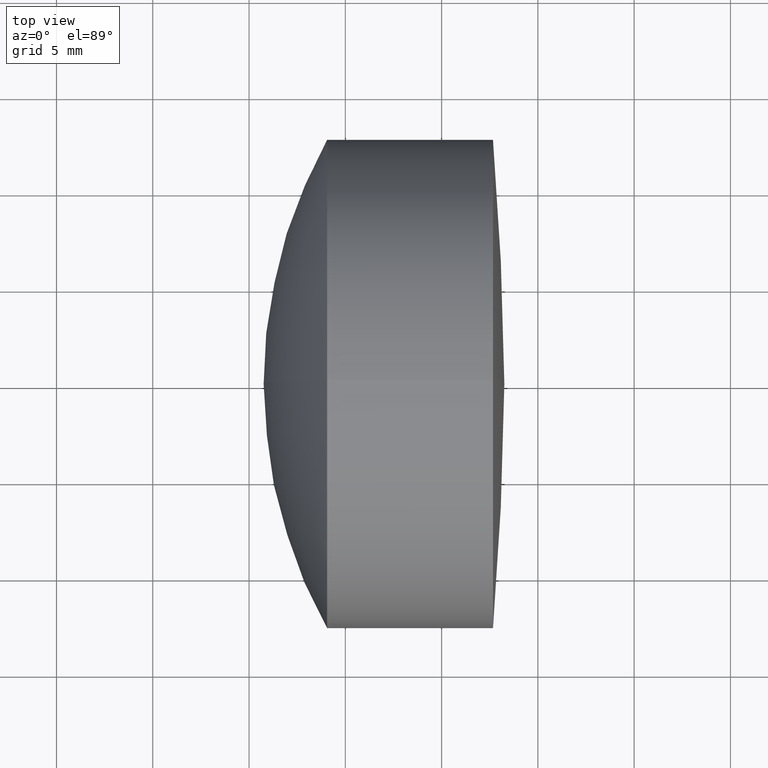
[diagram: clean part render]
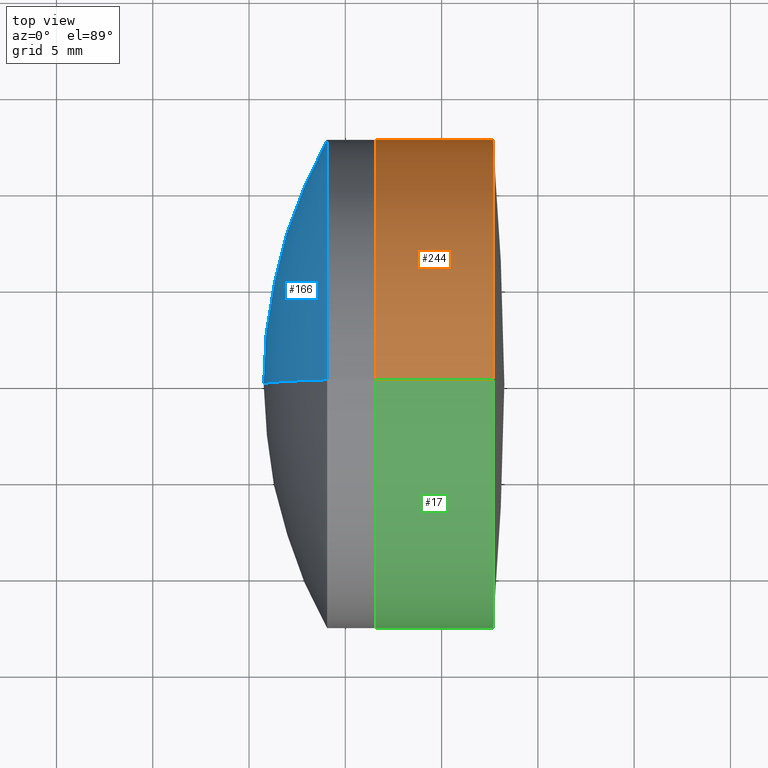
[diagram: same view with three faces highlighted in distinct colors, each labeled with its STEP entity id]
A machine part, top view with three faces highlighted in distinct colors.
Their STEP definitions:

[orange] entity #244 — the highlighted cylindrical surface (partial cylindrical patch) has radius 12.7 mm, axis along (-1, -0, -0).
#2 = DIRECTION ( 'NONE',  ( 0.0000000000000000000, 0.0000000000000000000, 1.000000000000000000 ) ) ;
#4 = VECTOR ( 'NONE', #186, 1000.000000000000000 ) ;
#21 = CARTESIAN_POINT ( 'NONE',  ( 281.5537749866366000, 0.0000000000000000000, 0.0000000000000000000 ) ) ;
#31 = VERTEX_POINT ( 'NONE', #156 ) ;
#49 = LINE ( 'NONE', #145, #177 ) ;
#57 = ORIENTED_EDGE ( 'NONE', *, *, #254, .T. ) ;
#66 = CYLINDRICAL_SURFACE ( 'NONE', #147, 12.69999999999997100 ) ;
#91 = DIRECTION ( 'NONE',  ( -1.000000000000000000, -0.0000000000000000000, -0.0000000000000000000 ) ) ;
#100 = DIRECTION ( 'NONE',  ( 0.0000000000000000000, 0.0000000000000000000, 1.000000000000000000 ) ) ;
#107 = CARTESIAN_POINT ( 'NONE',  ( -0.5519199926577972300, 0.0000000000000000000, 0.0000000000000000000 ) ) ;
#145 = CARTESIAN_POINT ( 'NONE',  ( -0.5519199926577972300, 0.0000000000000000000, 12.69999999999997100 ) ) ;
#147 = AXIS2_PLACEMENT_3D ( 'NONE', #107, #91, #2 ) ;
#148 = EDGE_LOOP ( 'NONE', ( #313, #57, #323, #182 ) ) ;
#149 = CIRCLE ( 'NONE', #202, 12.69999999999996600 ) ;
#156 = CARTESIAN_POINT ( 'NONE',  ( 281.5537749866366000, 1.555301434917136300E-015, -12.69999999999997100 ) ) ;
#163 = VERTEX_POINT ( 'NONE', #211 ) ;
#177 = VECTOR ( 'NONE', #253, 1000.000000000000000 ) ;
#182 = ORIENTED_EDGE ( 'NONE', *, *, #293, .F. ) ;
#186 = DIRECTION ( 'NONE',  ( -1.000000000000000000, -0.0000000000000000000, -0.0000000000000000000 ) ) ;
#196 = EDGE_CURVE ( 'NONE', #204, #31, #344, .T. ) ;
#198 = DIRECTION ( 'NONE',  ( -1.000000000000000000, -0.0000000000000000000, -0.0000000000000000000 ) ) ;
#202 = AXIS2_PLACEMENT_3D ( 'NONE', #283, #301, #227 ) ;
#203 = CARTESIAN_POINT ( 'NONE',  ( 281.5537749866366000, 0.0000000000000000000, 12.69999999999997800 ) ) ;
#204 = VERTEX_POINT ( 'NONE', #203 ) ;
#206 = FACE_OUTER_BOUND ( 'NONE', #148, .T. ) ;
#211 = CARTESIAN_POINT ( 'NONE',  ( 287.6694557845278800, 1.555301434917134700E-015, -12.69999999999996600 ) ) ;
#212 = AXIS2_PLACEMENT_3D ( 'NONE', #21, #198, #100 ) ;
#225 = CARTESIAN_POINT ( 'NONE',  ( -0.5519199926577972300, 1.555301434917135100E-015, -12.69999999999997100 ) ) ;
#227 = DIRECTION ( 'NONE',  ( 0.0000000000000000000, 0.0000000000000000000, 1.000000000000000000 ) ) ;
#244 = ADVANCED_FACE ( 'NONE', ( #206 ), #66, .T. ) ;
#253 = DIRECTION ( 'NONE',  ( -1.000000000000000000, -0.0000000000000000000, -0.0000000000000000000 ) ) ;
#254 = EDGE_CURVE ( 'NONE', #163, #31, #269, .T. ) ;
#269 = LINE ( 'NONE', #225, #4 ) ;
#277 = VERTEX_POINT ( 'NONE', #325 ) ;
#283 = CARTESIAN_POINT ( 'NONE',  ( 287.6694557845278800, 0.0000000000000000000, 0.0000000000000000000 ) ) ;
#293 = EDGE_CURVE ( 'NONE', #277, #204, #49, .T. ) ;
#294 = EDGE_CURVE ( 'NONE', #277, #163, #149, .T. ) ;
#301 = DIRECTION ( 'NONE',  ( -1.000000000000000000, -0.0000000000000000000, -0.0000000000000000000 ) ) ;
#313 = ORIENTED_EDGE ( 'NONE', *, *, #294, .T. ) ;
#323 = ORIENTED_EDGE ( 'NONE', *, *, #196, .F. ) ;
#325 = CARTESIAN_POINT ( 'NONE',  ( 287.6694557845278800, 0.0000000000000000000, 12.69999999999996600 ) ) ;
#344 = CIRCLE ( 'NONE', #212, 12.69999999999997800 ) ;

[blue] entity #166 — the highlighted spherical surface has radius 26.12 mm.
#9 = DIRECTION ( 'NONE',  ( -1.000000000000000000, -0.0000000000000000000, -0.0000000000000000000 ) ) ;
#20 = CARTESIAN_POINT ( 'NONE',  ( 279.0543419790191700, -1.555301434917138400E-015, 12.70000000000001000 ) ) ;
#23 = FACE_OUTER_BOUND ( 'NONE', #84, .T. ) ;
#30 = DIRECTION ( 'NONE',  ( 0.0000000000000000000, 0.0000000000000000000, -1.000000000000000000 ) ) ;
#44 = CARTESIAN_POINT ( 'NONE',  ( 279.0543419790191700, 0.0000000000000000000, -12.69999999999999900 ) ) ;
#56 = DIRECTION ( 'NONE',  ( 0.0000000000000000000, 1.224646799147353200E-016, -1.000000000000000000 ) ) ;
#59 = EDGE_CURVE ( 'NONE', #224, #142, #273, .T. ) ;
#80 = CIRCLE ( 'NONE', #108, 12.70000000000000800 ) ;
#84 = EDGE_LOOP ( 'NONE', ( #306, #278, #327 ) ) ;
#86 = DIRECTION ( 'NONE',  ( 0.0000000000000000000, 0.0000000000000000000, 1.000000000000000000 ) ) ;
#89 = SPHERICAL_SURFACE ( 'NONE', #187, 26.11999999999998300 ) ;
#94 = DIRECTION ( 'NONE',  ( 0.0000000000000000000, 1.000000000000000000, -0.0000000000000000000 ) ) ;
#95 = VERTEX_POINT ( 'NONE', #44 ) ;
#103 = CARTESIAN_POINT ( 'NONE',  ( 301.8789865545651300, 0.0000000000000000000, 8.762794518350186300E-015 ) ) ;
#108 = AXIS2_PLACEMENT_3D ( 'NONE', #143, #9, #86 ) ;
#142 = VERTEX_POINT ( 'NONE', #215 ) ;
#143 = CARTESIAN_POINT ( 'NONE',  ( 279.0543419790191700, 0.0000000000000000000, 0.0000000000000000000 ) ) ;
#166 = ADVANCED_FACE ( 'NONE', ( #23 ), #89, .T. ) ;
#178 = CARTESIAN_POINT ( 'NONE',  ( 301.8789865545651300, 0.0000000000000000000, 8.762794518350186300E-015 ) ) ;
#187 = AXIS2_PLACEMENT_3D ( 'NONE', #103, #299, #30 ) ;
#215 = CARTESIAN_POINT ( 'NONE',  ( 275.7589865545651800, 0.0000000000000000000, 7.163405798663743900E-015 ) ) ;
#218 = EDGE_CURVE ( 'NONE', #95, #142, #287, .T. ) ;
#224 = VERTEX_POINT ( 'NONE', #20 ) ;
#273 = CIRCLE ( 'NONE', #310, 26.11999999999998300 ) ;
#274 = EDGE_CURVE ( 'NONE', #224, #95, #80, .T. ) ;
#278 = ORIENTED_EDGE ( 'NONE', *, *, #274, .T. ) ;
#286 = AXIS2_PLACEMENT_3D ( 'NONE', #178, #94, #296 ) ;
#287 = CIRCLE ( 'NONE', #286, 26.11999999999998300 ) ;
#296 = DIRECTION ( 'NONE',  ( 0.0000000000000000000, 0.0000000000000000000, 1.000000000000000000 ) ) ;
#299 = DIRECTION ( 'NONE',  ( -0.0000000000000000000, -1.000000000000000000, -0.0000000000000000000 ) ) ;
#306 = ORIENTED_EDGE ( 'NONE', *, *, #59, .F. ) ;
#310 = AXIS2_PLACEMENT_3D ( 'NONE', #342, #319, #56 ) ;
#319 = DIRECTION ( 'NONE',  ( 0.0000000000000000000, -1.000000000000000000, -1.224646799147353200E-016 ) ) ;
#327 = ORIENTED_EDGE ( 'NONE', *, *, #218, .T. ) ;
#342 = CARTESIAN_POINT ( 'NONE',  ( 301.8789865545651300, 0.0000000000000000000, 8.762794518350186300E-015 ) ) ;

[green] entity #17 — the highlighted cylindrical surface (partial cylindrical patch) has radius 12.7 mm, axis along (-1, -0, -0).
#3 = ORIENTED_EDGE ( 'NONE', *, *, #254, .F. ) ;
#4 = VECTOR ( 'NONE', #186, 1000.000000000000000 ) ;
#17 = ADVANCED_FACE ( 'NONE', ( #267 ), #291, .T. ) ;
#22 = ORIENTED_EDGE ( 'NONE', *, *, #165, .F. ) ;
#31 = VERTEX_POINT ( 'NONE', #156 ) ;
#33 = CIRCLE ( 'NONE', #155, 12.69999999999997800 ) ;
#49 = LINE ( 'NONE', #145, #177 ) ;
#77 = DIRECTION ( 'NONE',  ( -1.000000000000000000, -0.0000000000000000000, -0.0000000000000000000 ) ) ;
#82 = AXIS2_PLACEMENT_3D ( 'NONE', #146, #77, #340 ) ;
#93 = CARTESIAN_POINT ( 'NONE',  ( 281.5537749866366000, 0.0000000000000000000, 0.0000000000000000000 ) ) ;
#109 = ORIENTED_EDGE ( 'NONE', *, *, #293, .T. ) ;
#119 = DIRECTION ( 'NONE',  ( 0.0000000000000000000, 0.0000000000000000000, 1.000000000000000000 ) ) ;
#126 = CARTESIAN_POINT ( 'NONE',  ( 287.6694557845278800, 0.0000000000000000000, 0.0000000000000000000 ) ) ;
#127 = DIRECTION ( 'NONE',  ( -1.000000000000000000, -0.0000000000000000000, -0.0000000000000000000 ) ) ;
#145 = CARTESIAN_POINT ( 'NONE',  ( -0.5519199926577972300, 0.0000000000000000000, 12.69999999999997100 ) ) ;
#146 = CARTESIAN_POINT ( 'NONE',  ( -0.5519199926577972300, 0.0000000000000000000, 0.0000000000000000000 ) ) ;
#155 = AXIS2_PLACEMENT_3D ( 'NONE', #93, #127, #119 ) ;
#156 = CARTESIAN_POINT ( 'NONE',  ( 281.5537749866366000, 1.555301434917136300E-015, -12.69999999999997100 ) ) ;
#163 = VERTEX_POINT ( 'NONE', #211 ) ;
#165 = EDGE_CURVE ( 'NONE', #31, #204, #33, .T. ) ;
#177 = VECTOR ( 'NONE', #253, 1000.000000000000000 ) ;
#186 = DIRECTION ( 'NONE',  ( -1.000000000000000000, -0.0000000000000000000, -0.0000000000000000000 ) ) ;
#189 = ORIENTED_EDGE ( 'NONE', *, *, #210, .T. ) ;
#191 = CIRCLE ( 'NONE', #265, 12.69999999999996600 ) ;
#203 = CARTESIAN_POINT ( 'NONE',  ( 281.5537749866366000, 0.0000000000000000000, 12.69999999999997800 ) ) ;
#204 = VERTEX_POINT ( 'NONE', #203 ) ;
#210 = EDGE_CURVE ( 'NONE', #163, #277, #191, .T. ) ;
#211 = CARTESIAN_POINT ( 'NONE',  ( 287.6694557845278800, 1.555301434917134700E-015, -12.69999999999996600 ) ) ;
#225 = CARTESIAN_POINT ( 'NONE',  ( -0.5519199926577972300, 1.555301434917135100E-015, -12.69999999999997100 ) ) ;
#230 = DIRECTION ( 'NONE',  ( -1.000000000000000000, -0.0000000000000000000, -0.0000000000000000000 ) ) ;
#253 = DIRECTION ( 'NONE',  ( -1.000000000000000000, -0.0000000000000000000, -0.0000000000000000000 ) ) ;
#254 = EDGE_CURVE ( 'NONE', #163, #31, #269, .T. ) ;
#265 = AXIS2_PLACEMENT_3D ( 'NONE', #126, #230, #346 ) ;
#267 = FACE_OUTER_BOUND ( 'NONE', #282, .T. ) ;
#269 = LINE ( 'NONE', #225, #4 ) ;
#277 = VERTEX_POINT ( 'NONE', #325 ) ;
#282 = EDGE_LOOP ( 'NONE', ( #3, #189, #109, #22 ) ) ;
#291 = CYLINDRICAL_SURFACE ( 'NONE', #82, 12.69999999999997100 ) ;
#293 = EDGE_CURVE ( 'NONE', #277, #204, #49, .T. ) ;
#325 = CARTESIAN_POINT ( 'NONE',  ( 287.6694557845278800, 0.0000000000000000000, 12.69999999999996600 ) ) ;
#340 = DIRECTION ( 'NONE',  ( 0.0000000000000000000, 0.0000000000000000000, 1.000000000000000000 ) ) ;
#346 = DIRECTION ( 'NONE',  ( 0.0000000000000000000, 0.0000000000000000000, 1.000000000000000000 ) ) ;